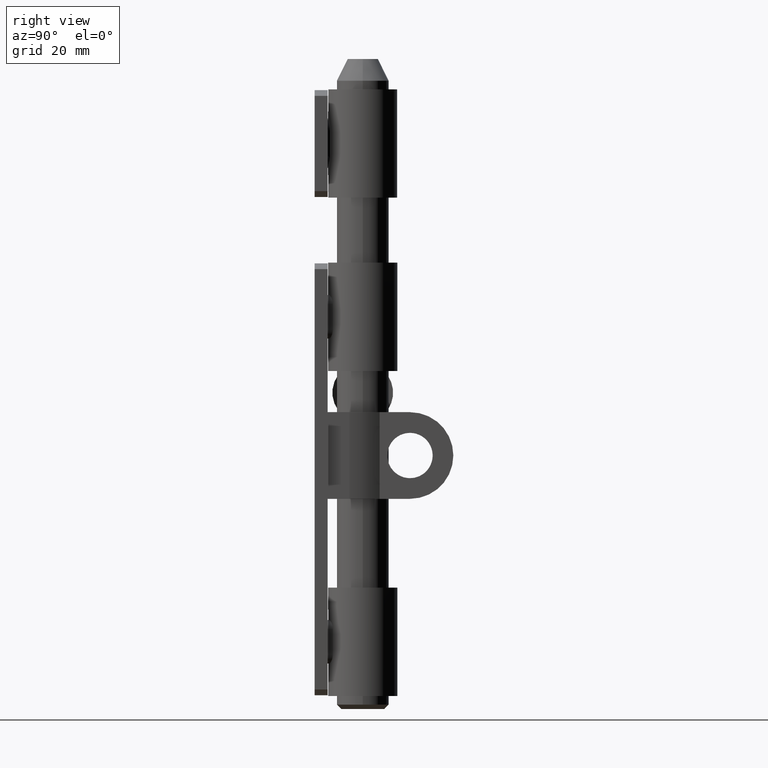
[diagram: clean part render]
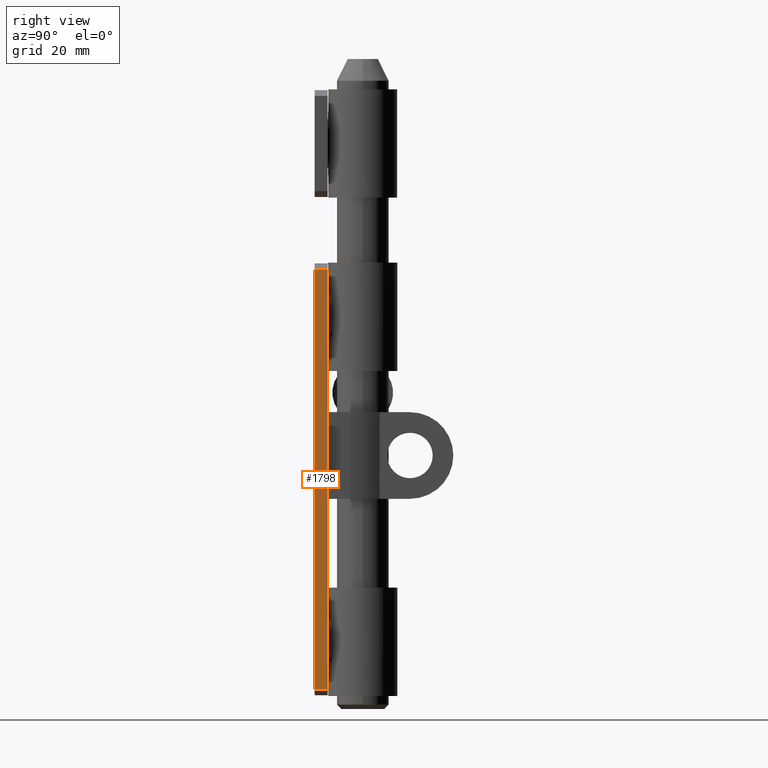
[diagram: same view with one face highlighted and labeled with its STEP entity id]
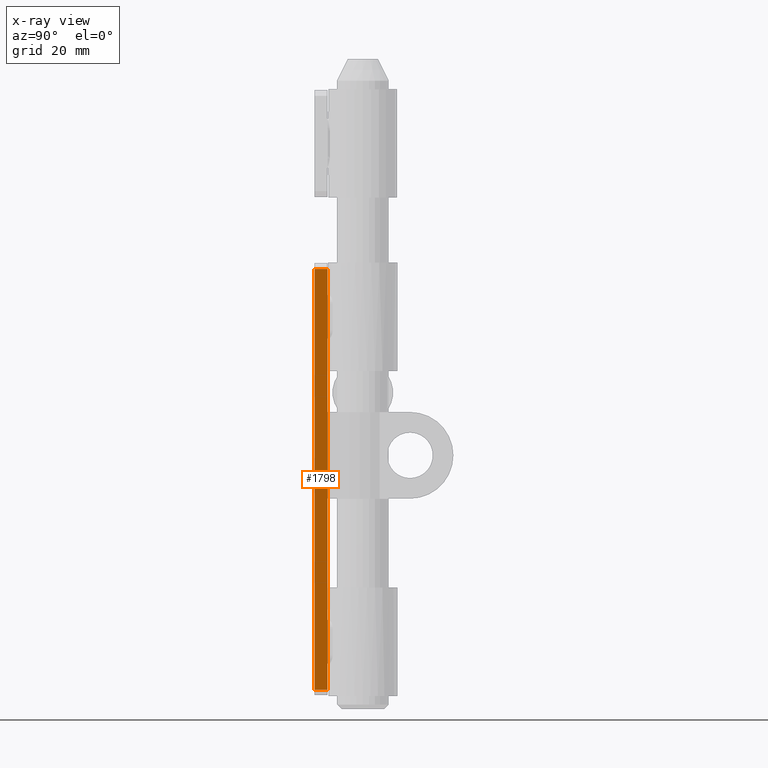
[diagram: x-ray of the same camera — body ghosted, the highlighted face saturated]
A machine part, right view. The second image highlights one B-rep face of the part: STEP entity #1798.
The next image is the same camera in x-ray: the body ghosted, the highlighted face saturated — about 0% of this face is hidden behind the body in this view.
In plain terms, the highlighted planar face has unit normal (1, 0, 0).
Its self-contained STEP definition (entity closure, byte-faithful):
#295 = VERTEX_POINT ( 'NONE', #7303 ) ;
#418 = CARTESIAN_POINT ( 'NONE',  ( 17.49999999999998579, 0.000000000000000000, -48.50000000000000000 ) ) ;
#483 = DIRECTION ( 'NONE',  ( -0.000000000000000000, -0.000000000000000000, -1.000000000000000000 ) ) ;
#1328 = EDGE_CURVE ( 'NONE', #295, #8710, #3885, .T. ) ;
#1434 = CARTESIAN_POINT ( 'NONE',  ( 17.49999999999998579, 0.000000000000000000, -48.50000000000000000 ) ) ;
#1798 = ADVANCED_FACE ( 'NONE', ( #9891 ), #10890, .T. ) ;
#2190 = VERTEX_POINT ( 'NONE', #1434 ) ;
#2208 = ORIENTED_EDGE ( 'NONE', *, *, #1328, .F. ) ;
#2343 = AXIS2_PLACEMENT_3D ( 'NONE', #8379, #6105, #7333 ) ;
#3885 = LINE ( 'NONE', #12706, #13091 ) ;
#4193 = EDGE_LOOP ( 'NONE', ( #15612, #2208, #10036, #10620 ) ) ;
#4979 = EDGE_CURVE ( 'NONE', #14092, #2190, #11286, .T. ) ;
#5394 = CARTESIAN_POINT ( 'NONE',  ( 17.49999999999998579, -3.000000000000000000, -48.50000000000000000 ) ) ;
#6105 = DIRECTION ( 'NONE',  ( 1.000000000000000000, 0.000000000000000000, 0.000000000000000000 ) ) ;
#6336 = LINE ( 'NONE', #5394, #14628 ) ;
#7216 = DIRECTION ( 'NONE',  ( 0.000000000000000000, 1.000000000000000000, 0.000000000000000000 ) ) ;
#7303 = CARTESIAN_POINT ( 'NONE',  ( 17.49999999999995737, -3.000000000000000000, 48.49999999999998579 ) ) ;
#7333 = DIRECTION ( 'NONE',  ( 0.000000000000000000, 0.000000000000000000, -1.000000000000000000 ) ) ;
#8379 = CARTESIAN_POINT ( 'NONE',  ( 17.49999999999998579, -3.000000000000000000, -48.50000000000000000 ) ) ;
#8710 = VERTEX_POINT ( 'NONE', #11964 ) ;
#9025 = DIRECTION ( 'NONE',  ( -0.000000000000000000, -0.000000000000000000, -1.000000000000000000 ) ) ;
#9108 = EDGE_CURVE ( 'NONE', #295, #14092, #6336, .T. ) ;
#9262 = LINE ( 'NONE', #418, #9624 ) ;
#9269 = CARTESIAN_POINT ( 'NONE',  ( 17.49999999999998579, -3.000000000000000000, -48.50000000000000000 ) ) ;
#9624 = VECTOR ( 'NONE', #483, 1000.000000000000000 ) ;
#9891 = FACE_OUTER_BOUND ( 'NONE', #4193, .T. ) ;
#10036 = ORIENTED_EDGE ( 'NONE', *, *, #9108, .T. ) ;
#10620 = ORIENTED_EDGE ( 'NONE', *, *, #4979, .T. ) ;
#10890 = PLANE ( 'NONE',  #2343 ) ;
#11044 = CARTESIAN_POINT ( 'NONE',  ( 17.49999999999998579, -3.000000000000000000, -48.50000000000000000 ) ) ;
#11286 = LINE ( 'NONE', #9269, #14132 ) ;
#11964 = CARTESIAN_POINT ( 'NONE',  ( 17.49999999999995737, 0.000000000000000000, 48.49999999999998579 ) ) ;
#12706 = CARTESIAN_POINT ( 'NONE',  ( 17.49999999999995737, -3.000000000000000000, 48.49999999999998579 ) ) ;
#12859 = DIRECTION ( 'NONE',  ( 0.000000000000000000, 1.000000000000000000, 0.000000000000000000 ) ) ;
#13091 = VECTOR ( 'NONE', #12859, 1000.000000000000000 ) ;
#14092 = VERTEX_POINT ( 'NONE', #11044 ) ;
#14132 = VECTOR ( 'NONE', #7216, 1000.000000000000000 ) ;
#14628 = VECTOR ( 'NONE', #9025, 1000.000000000000000 ) ;
#15159 = EDGE_CURVE ( 'NONE', #8710, #2190, #9262, .T. ) ;
#15612 = ORIENTED_EDGE ( 'NONE', *, *, #15159, .F. ) ;